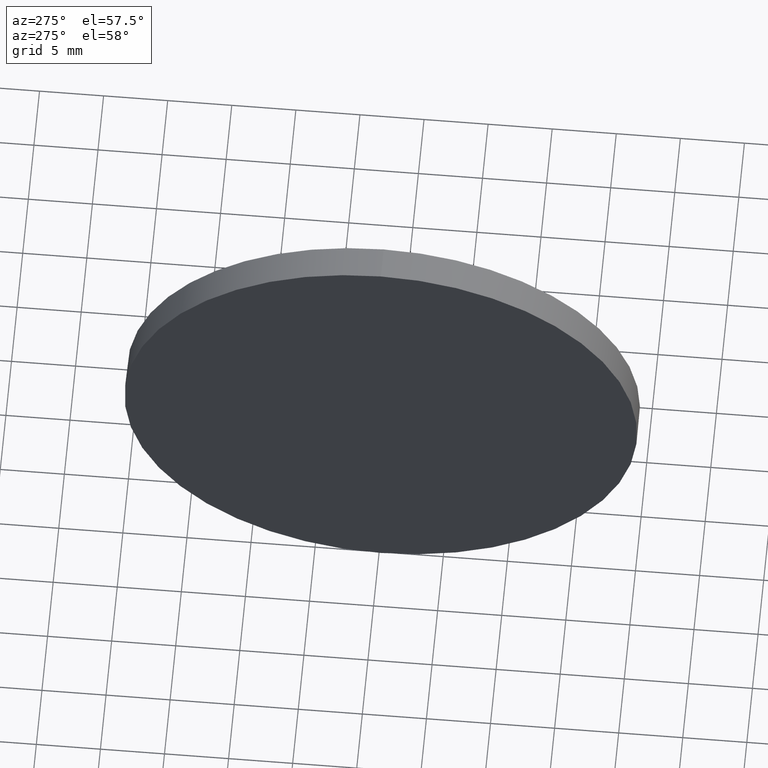
[diagram: clean part render]
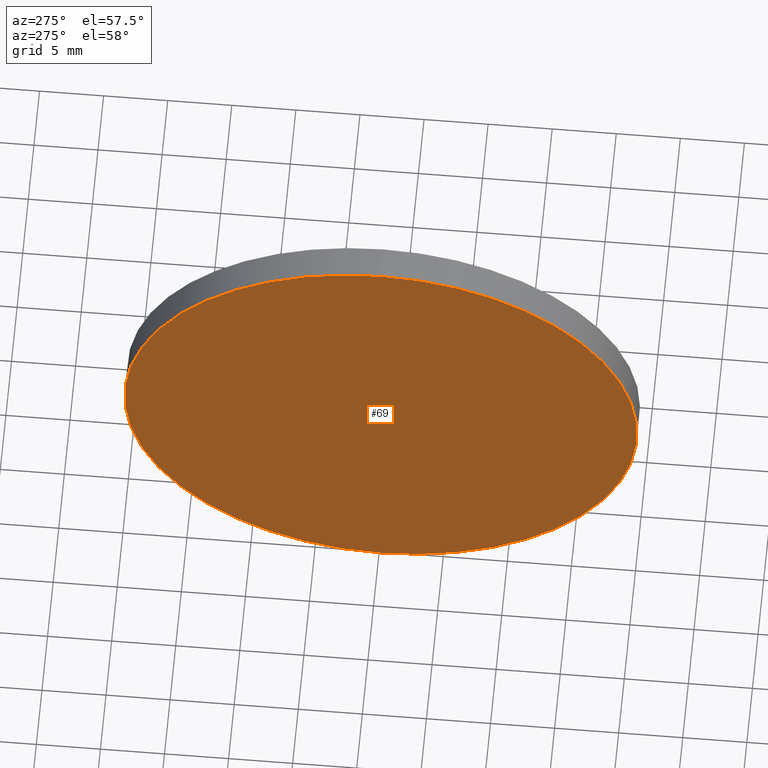
[diagram: same view with one face highlighted and labeled with its STEP entity id]
A machine part, auxiliary view. The second image highlights one B-rep face of the part: STEP entity #69.
In plain terms, the highlighted planar face has unit normal (1, 0, 0).
Its self-contained STEP definition (entity closure, byte-faithful):
#6 = VERTEX_POINT ( 'NONE', #153 ) ;
#20 = EDGE_CURVE ( 'NONE', #164, #6, #21, .T. ) ;
#21 = CIRCLE ( 'NONE', #103, 19.99999999999999600 ) ;
#24 = CARTESIAN_POINT ( 'NONE',  ( 519.3687625904749400, 34.81724702676228800, 0.0000000000000000000 ) ) ;
#45 = ORIENTED_EDGE ( 'NONE', *, *, #185, .T. ) ;
#48 = ORIENTED_EDGE ( 'NONE', *, *, #20, .T. ) ;
#59 = CARTESIAN_POINT ( 'NONE',  ( 519.3687625904749400, 34.81724702676228800, 0.0000000000000000000 ) ) ;
#62 = DIRECTION ( 'NONE',  ( 1.000000000000000000, 0.0000000000000000000, 0.0000000000000000000 ) ) ;
#69 = ADVANCED_FACE ( 'NONE', ( #114 ), #94, .F. ) ;
#70 = EDGE_LOOP ( 'NONE', ( #48, #45 ) ) ;
#80 = DIRECTION ( 'NONE',  ( -1.000000000000000000, -0.0000000000000000000, -0.0000000000000000000 ) ) ;
#94 = PLANE ( 'NONE',  #115 ) ;
#95 = CARTESIAN_POINT ( 'NONE',  ( 519.3687625904749400, 34.81724702676228800, 0.0000000000000000000 ) ) ;
#103 = AXIS2_PLACEMENT_3D ( 'NONE', #24, #80, #138 ) ;
#112 = CIRCLE ( 'NONE', #118, 19.99999999999999600 ) ;
#114 = FACE_OUTER_BOUND ( 'NONE', #70, .T. ) ;
#115 = AXIS2_PLACEMENT_3D ( 'NONE', #95, #62, #166 ) ;
#118 = AXIS2_PLACEMENT_3D ( 'NONE', #59, #143, #175 ) ;
#138 = DIRECTION ( 'NONE',  ( 0.0000000000000000000, 0.0000000000000000000, 1.000000000000000000 ) ) ;
#143 = DIRECTION ( 'NONE',  ( -1.000000000000000000, -0.0000000000000000000, -0.0000000000000000000 ) ) ;
#148 = CARTESIAN_POINT ( 'NONE',  ( 519.3687625904749400, 34.81724702676228800, 19.99999999999999600 ) ) ;
#153 = CARTESIAN_POINT ( 'NONE',  ( 519.3687625904749400, 34.81724702676228800, -19.99999999999999600 ) ) ;
#164 = VERTEX_POINT ( 'NONE', #148 ) ;
#166 = DIRECTION ( 'NONE',  ( 0.0000000000000000000, 0.0000000000000000000, -1.000000000000000000 ) ) ;
#175 = DIRECTION ( 'NONE',  ( 0.0000000000000000000, 0.0000000000000000000, 1.000000000000000000 ) ) ;
#185 = EDGE_CURVE ( 'NONE', #6, #164, #112, .T. ) ;